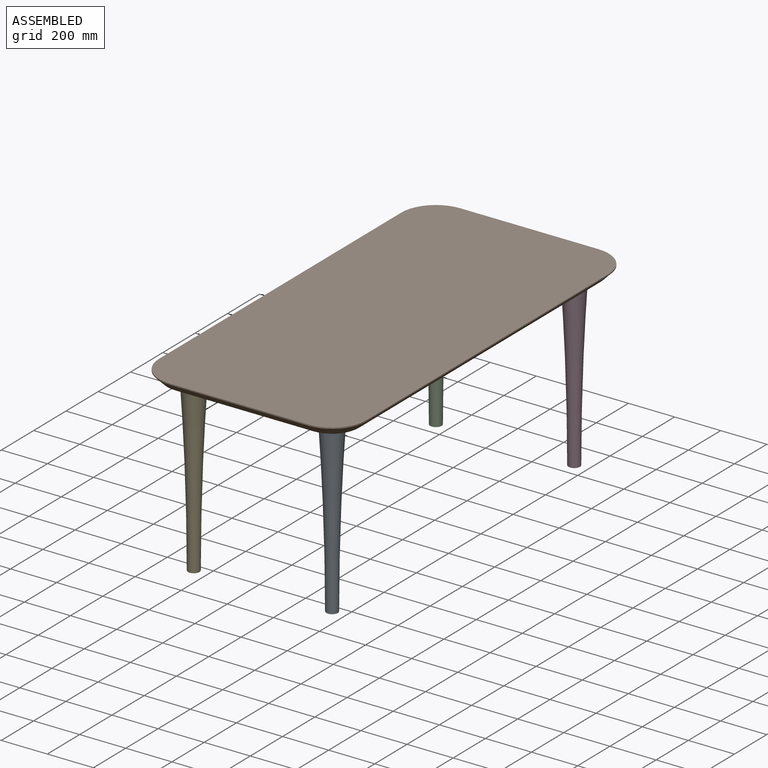
[diagram: assembled view]
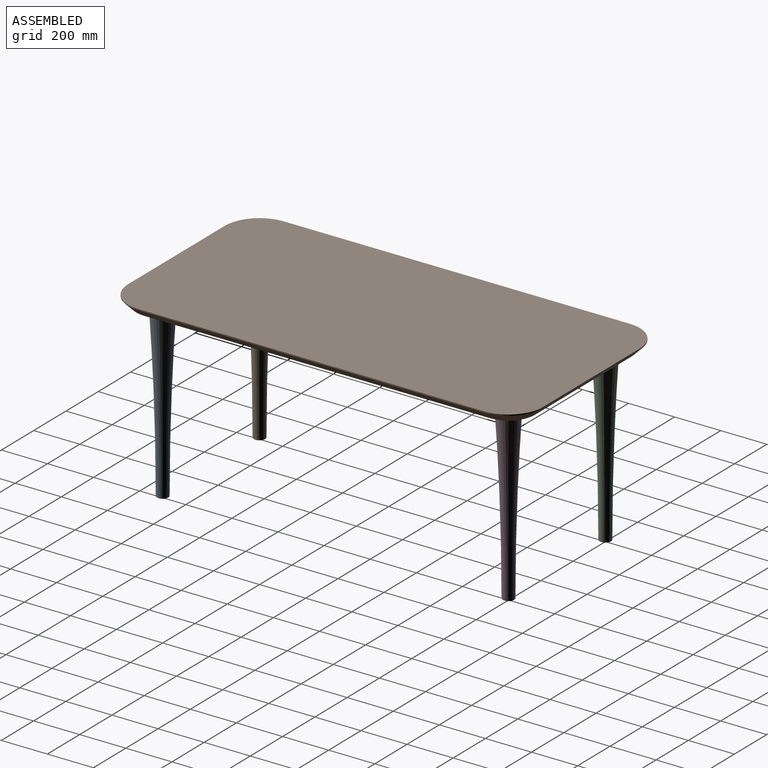
[diagram: assembled view, second angle]
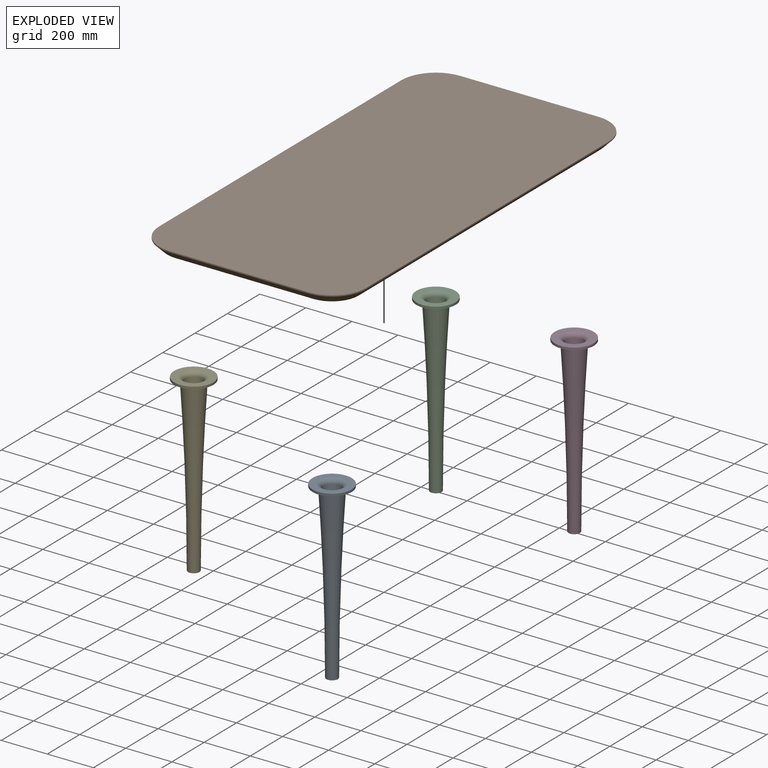
[diagram: exploded view]
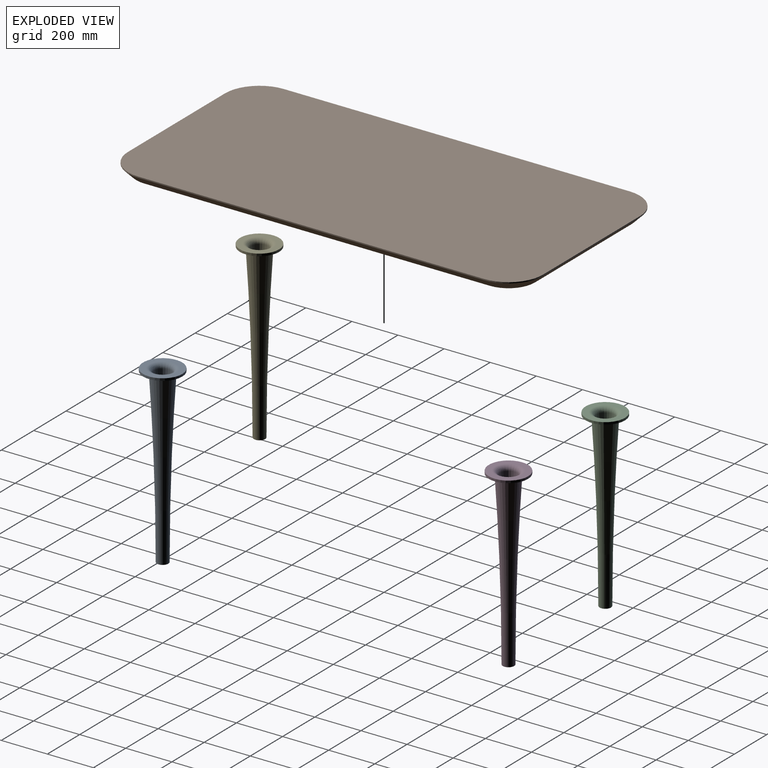
[diagram: exploded view, second angle]
ASSEMBLY  parts=5 mates=4
PART A: 11 faces, bbox 7124.6x7124.6x8003.5 mm
  f0: plane 20.02x20.02mm, normal (0,0,1), area 314.8mm2, adj f9
  f1: torus R=11287.5mm, axis (0,0,-1), area 106424mm2, adj f8,f9
  f2: cylinder r=85mm len=170mm, axis (0,0,-1), area 5340.7mm2, adj f3,f4
  f3: plane 170x170mm, normal (0,0,1), area 11628.7mm2, adj f2,f8
  f4: plane 170x170mm, normal (0,0,-1), area 9813.5mm2, adj f2,f7
  f5: plane 48x48mm, normal (0,0,-1), area 1809.6mm2, adj f10
  f6: torus R=11287.5mm, axis (0,0,-1), area 152671.7mm2, adj f7,f10
  f7: torus R=64.04mm, axis (0,0,-1), area 7764.9mm2, adj f4,f6
  f8: torus R=59.36mm, axis (0,0,-1), area 8878.1mm2, adj f1,f3
  f9: torus R=10.01mm, axis (0,0,-1), area 650.4mm2, adj f0,f1
  f10: torus R=24mm, axis (0,0,-1), area 243.1mm2, adj f5,f6
PART B: 70 faces, bbox 900x1800x40 mm
  f0: plane 1730x830mm, normal (0,0,-1), area 490317.2mm2, adj f10,f11,f12,f13,f14,f15,f16,f17
  f1: plane 600x5mm, normal (0,-1,0), area 3000mm2, adj f5,f6,f9,f13
  f2: plane 1500x5mm, normal (1,0,0), area 7500mm2, adj f5,f6,f7,f10
  f3: plane 600x5mm, normal (0,1,0), area 3000mm2, adj f5,f7,f8,f14
  f4: plane 1500x5mm, normal (-1,0,0), area 7500mm2, adj f5,f8,f9,f17
  f5: plane 1800x900mm, normal (0,0,1), area 1600685.8mm2, adj f1,f2,f3,f4,f6,f7,f8,f9
  f6: cylinder r=150mm len=150mm, axis (0,0,1), area 1178.1mm2, adj f1,f2,f5,f11
  f7: cylinder r=150mm len=150mm, axis (0,0,-1), area 1178.1mm2, adj f2,f3,f5,f12
  f8: cylinder r=150mm len=150mm, axis (0,0,1), area 1178.1mm2, adj f3,f4,f5,f16
  f9: cylinder r=150mm len=150mm, axis (0,0,-1), area 1178.1mm2, adj f1,f4,f5,f15
  f10: plane 1500x35mm, normal (0.71,0,-0.71), area 74246.2mm2, adj f0,f2,f11,f12
  f11: cone r=115mm half-angle=45deg, axis (0,0,1), area 10301.9mm2, adj f0,f6,f10,f13
  f12: cone r=115mm half-angle=45deg, axis (0,0,1), area 10301.9mm2, adj f0,f7,f10,f14
  f13: plane 600x35mm, normal (0,-0.71,-0.71), area 29698.5mm2, adj f0,f1,f11,f15
  f14: plane 600x35mm, normal (0,0.71,-0.71), area 29698.5mm2, adj f0,f3,f12,f16
  f15: cone r=115mm half-angle=45deg, axis (0,0,1), area 10301.9mm2, adj f0,f9,f13,f17
  f16: cone r=115mm half-angle=45deg, axis (0,0,1), area 10301.9mm2, adj f0,f8,f14,f17
  f17: plane 1500x35mm, normal (-0.71,0,-0.71), area 74246.2mm2, adj f0,f4,f15,f16
  f18: cylinder r=86mm len=172mm, axis (0,0,-1), area 5403.5mm2, adj f0,f19
  f19: plane 172x172mm, normal (0,0,-1), area 23235.2mm2, adj f18
  f20: cylinder r=86mm len=172mm, axis (0,0,-1), area 5403.5mm2, adj f0,f21
  f21: plane 172x172mm, normal (0,0,-1), area 23235.2mm2, adj f20
  f22: cylinder r=86mm len=172mm, axis (0,0,-1), area 5403.5mm2, adj f0,f23
  f23: plane 172x172mm, normal (0,0,-1), area 23235.2mm2, adj f22
  f24: cylinder r=86mm len=172mm, axis (0,0,-1), area 5403.5mm2, adj f0,f25
  f25: plane 172x172mm, normal (0,0,-1), area 23235.2mm2, adj f24
  f26: plane 596.52x366.11mm, normal (0,0,-1), area 130316.6mm2, adj f30,f31,f32,f33,f34,f35,f36,f37
  f27: plane 1128.24x259.61mm, normal (0,0,-1), area 167097.9mm2, adj f50,f51,f52,f53,f54,f55,f56,f57
  f28: plane 1128.24x259.61mm, normal (0,0,-1), area 167097.9mm2, adj f60,f61,f62,f63,f64,f65,f66,f67
  f29: plane 596.52x366.11mm, normal (0,0,-1), area 130316.6mm2, adj f40,f41,f42,f43,f44,f45,f46,f47
  f30: plane 418.77x190.91mm, normal (0.66,0.26,-0.71), area 18626.6mm2, adj f0,f26,f31,f32
  f31: cone r=50mm half-angle=45deg, axis (0,0,-1), area 3535mm2, adj f0,f26,f30,f33
  f32: cone r=50mm half-angle=45deg, axis (0,0,-1), area 1817.7mm2, adj f0,f26,f30,f34
  f33: plane 418.77x190.91mm, normal (-0.66,0.26,-0.71), area 18626.6mm2, adj f0,f26,f31,f35
  f34: cone r=156mm half-angle=45deg, axis (0,0,1), area 5944mm2, adj f0,f26,f32,f36
  f35: cone r=50mm half-angle=45deg, axis (0,0,-1), area 1817.7mm2, adj f0,f26,f33,f37
  f36: cone r=50mm half-angle=45deg, axis (0,0,-1), area 2296.5mm2, adj f0,f26,f34,f38
  f37: cone r=156mm half-angle=45deg, axis (0,0,1), area 5944mm2, adj f0,f26,f35,f39
  f38: plane 188.12x30mm, normal (0,-0.71,-0.71), area 7981.3mm2, adj f0,f26,f36,f39
  f39: cone r=50mm half-angle=45deg, axis (0,0,-1), area 2296.5mm2, adj f0,f26,f37,f38
  f40: plane 418.77x190.91mm, normal (0.66,-0.26,-0.71), area 18626.6mm2, adj f0,f29,f41,f42
  f41: cone r=50mm half-angle=45deg, axis (0,0,-1), area 1817.7mm2, adj f0,f29,f40,f43
  f42: cone r=50mm half-angle=45deg, axis (0,0,-1), area 3535mm2, adj f0,f29,f40,f44
  f43: cone r=156mm half-angle=45deg, axis (0,0,1), area 5944mm2, adj f0,f29,f41,f45
  f44: plane 418.77x190.91mm, normal (-0.66,-0.26,-0.71), area 18626.6mm2, adj f0,f29,f42,f46
  f45: cone r=50mm half-angle=45deg, axis (0,0,-1), area 2296.5mm2, adj f0,f29,f43,f47
  f46: cone r=50mm half-angle=45deg, axis (0,0,-1), area 1817.7mm2, adj f0,f29,f44,f48
  f47: plane 188.12x30mm, normal (0,0.71,-0.71), area 7981.3mm2, adj f0,f29,f45,f49
  f48: cone r=156mm half-angle=45deg, axis (0,0,1), area 5944mm2, adj f0,f29,f46,f49
  f49: cone r=50mm half-angle=45deg, axis (0,0,-1), area 2296.5mm2, adj f0,f29,f47,f48
  f50: cone r=156mm half-angle=45deg, axis (0,0,1), area 69.1mm2, adj f0,f27,f51,f52
  f51: cone r=50mm half-angle=45deg, axis (0,0,-1), area 2296.5mm2, adj f0,f27,f50,f53
  f52: cone r=50mm half-angle=45deg, axis (0,0,-1), area 1817.7mm2, adj f0,f27,f50,f54
  f53: plane 1088.12x30mm, normal (-0.71,0,-0.71), area 46165.1mm2, adj f0,f27,f51,f55
  f54: plane 555.26x245.5mm, normal (0.66,0.26,-0.71), area 24863.3mm2, adj f0,f27,f52,f56
  f55: cone r=50mm half-angle=45deg, axis (0,0,-1), area 2296.5mm2, adj f0,f27,f53,f57
  f56: cone r=50mm half-angle=45deg, axis (0,0,-1), area 1130mm2, adj f0,f27,f54,f58
  f57: cone r=156mm half-angle=45deg, axis (0,0,1), area 69.1mm2, adj f0,f27,f55,f59
  f58: plane 555.26x245.5mm, normal (0.66,-0.26,-0.71), area 24863.3mm2, adj f0,f27,f56,f59
  f59: cone r=50mm half-angle=45deg, axis (0,0,-1), area 1817.7mm2, adj f0,f27,f57,f58
  f60: cone r=156mm half-angle=45deg, axis (0,0,1), area 69.1mm2, adj f0,f28,f61,f62
  f61: cone r=50mm half-angle=45deg, axis (0,0,-1), area 1817.7mm2, adj f0,f28,f60,f63
  f62: cone r=50mm half-angle=45deg, axis (0,0,-1), area 2296.5mm2, adj f0,f28,f60,f64
  f63: plane 555.26x245.5mm, normal (-0.66,0.26,-0.71), area 24863.3mm2, adj f0,f28,f61,f65
  f64: plane 1088.12x30mm, normal (0.71,0,-0.71), area 46165.1mm2, adj f0,f28,f62,f66
  f65: cone r=50mm half-angle=45deg, axis (0,0,-1), area 1130mm2, adj f0,f28,f63,f67
  f66: cone r=50mm half-angle=45deg, axis (0,0,-1), area 2296.5mm2, adj f0,f28,f64,f68
  f67: plane 555.26x245.5mm, normal (-0.66,-0.26,-0.71), area 24863.3mm2, adj f0,f28,f65,f69
  f68: cone r=156mm half-angle=45deg, axis (0,0,1), area 69.1mm2, adj f0,f28,f66,f69
  f69: cone r=50mm half-angle=45deg, axis (0,0,-1), area 1817.7mm2, adj f0,f28,f67,f68
PART C: same geometry as A
PART D: same geometry as A
PART E: same geometry as A
PLACE A rot(axis=(0,0,1),90deg) t=(300,-750,-790)mm
PLACE B t=(0,0,-40)mm
PLACE C rot(axis=(0,0,-1),180deg) t=(-300,750,-790)mm
PLACE D rot(axis=(0,0,1),90deg) t=(300,750,-790)mm
PLACE E rot(axis=(0,0,1),90deg) t=(-300,-750,-790)mm
MATE fastened C.f2 <-> B.f8  axis (0,0,1) through (-300,750,-30)mm
MATE fastened D.f2 <-> B.f7  axis (0,0,1) through (300,750,-30)mm
MATE fastened A.f2 <-> B.f6  axis (0,0,1) through (300,-750,-30)mm
MATE fastened E.f2 <-> B.f9  axis (0,0,1) through (-300,-750,-30)mm
